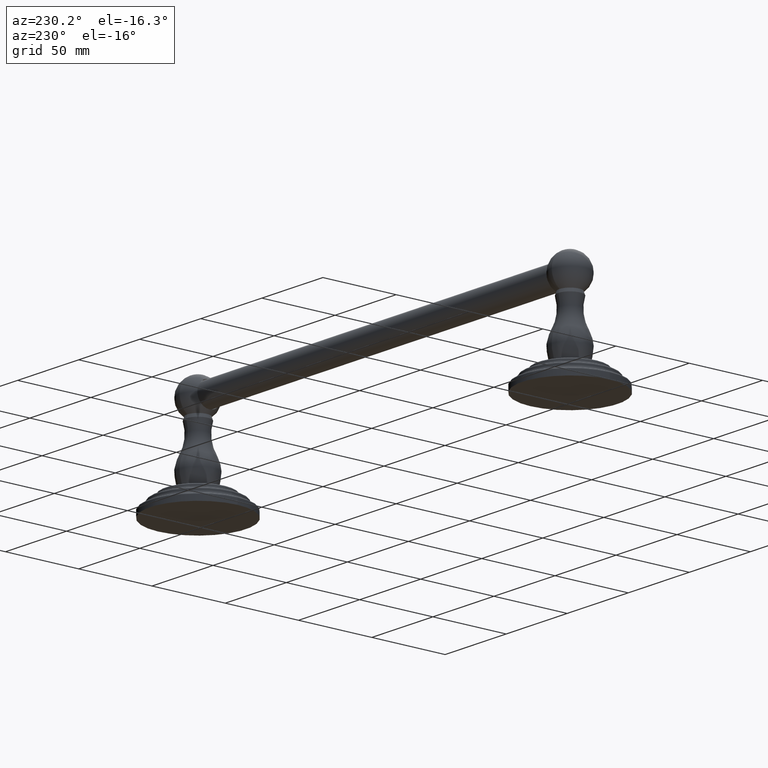
[diagram: clean part render]
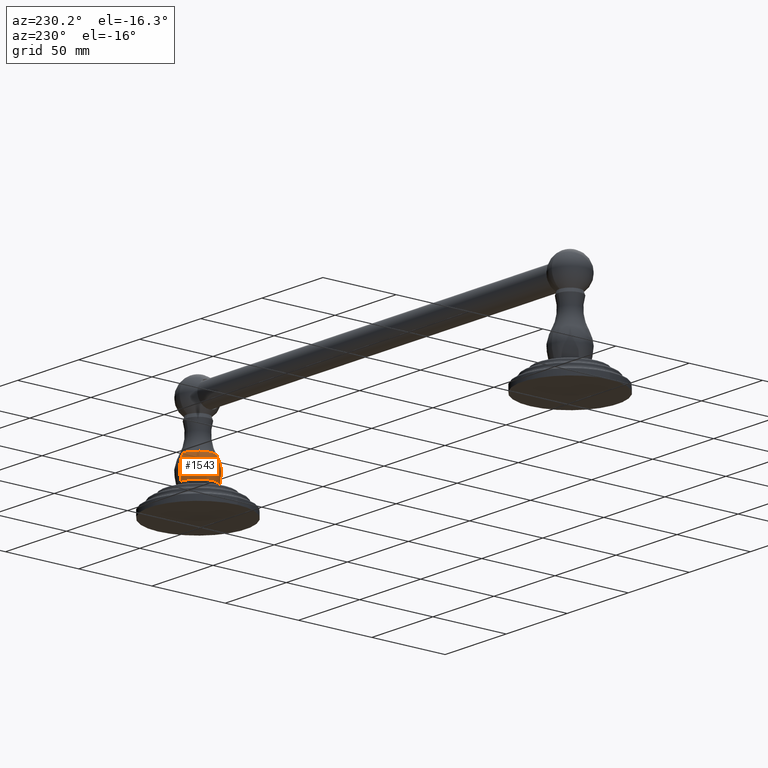
[diagram: same view with one face highlighted and labeled with its STEP entity id]
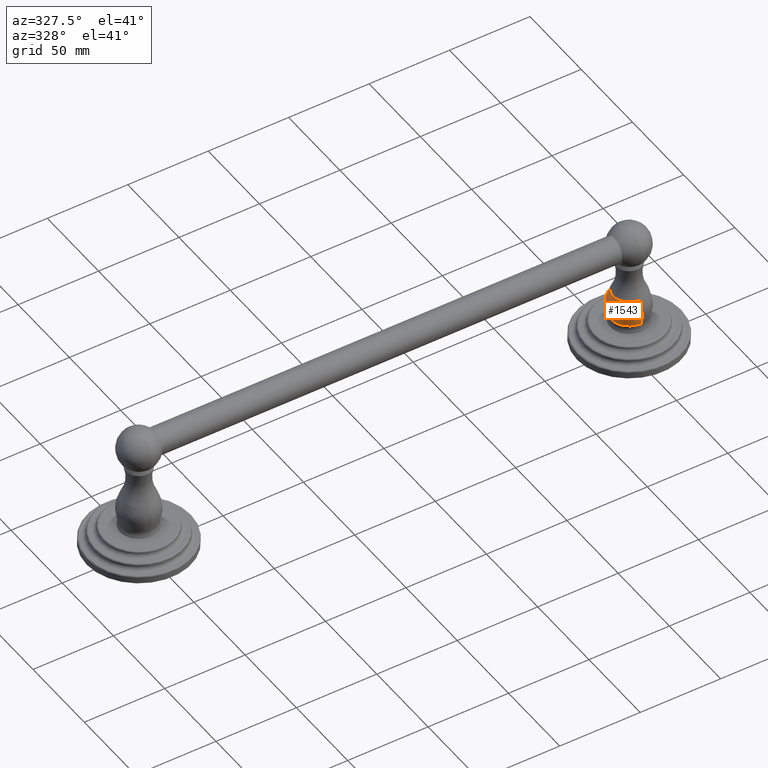
[diagram: same view with one face highlighted and labeled with its STEP entity id]
A machine part, auxiliary view. The second image highlights one B-rep face of the part: STEP entity #1543.
A second angle (auxiliary view) of the same face is appended — the face is thin or edge-on in the first view.
In plain terms, the highlighted face is a freeform B-spline surface patch.
Its self-contained STEP definition (entity closure, byte-faithful):
#424=CARTESIAN_POINT('',(6.E0,0.E0,1.325407199184E0));
#425=DIRECTION('',(0.E0,0.E0,-1.E0));
#426=DIRECTION('',(0.E0,-1.E0,0.E0));
#427=AXIS2_PLACEMENT_3D('',#424,#425,#426);
#439=CARTESIAN_POINT('',(6.E0,0.E0,7.122557875058E-1));
#440=DIRECTION('',(0.E0,0.E0,-1.E0));
#441=DIRECTION('',(0.E0,-1.E0,0.E0));
#442=AXIS2_PLACEMENT_3D('',#439,#440,#441);
#444=CARTESIAN_POINT('',(6.E0,-2.317404452469E-1,9.681354143990E-1));
#445=DIRECTION('',(1.E0,0.E0,0.E0));
#446=DIRECTION('',(0.E0,9.360087340445E-1,-3.519767745071E-1));
#447=AXIS2_PLACEMENT_3D('',#444,#445,#446);
#454=CARTESIAN_POINT('',(6.E0,2.317404452469E-1,9.681354143990E-1));
#455=DIRECTION('',(-1.E0,0.E0,0.E0));
#456=DIRECTION('',(0.E0,-9.360087340445E-1,-3.519767745071E-1));
#457=AXIS2_PLACEMENT_3D('',#454,#455,#456);
#826=CARTESIAN_POINT('',(6.E0,-4.487179911698E-1,7.122557875058E-1));
#827=CARTESIAN_POINT('',(6.E0,4.487179911698E-1,7.122557875058E-1));
#828=VERTEX_POINT('',#826);
#829=VERTEX_POINT('',#827);
#834=CARTESIAN_POINT('',(6.E0,-4.013906146024E-1,1.325407199184E0));
#835=CARTESIAN_POINT('',(6.E0,4.013906146024E-1,1.325407199184E0));
#836=VERTEX_POINT('',#834);
#837=VERTEX_POINT('',#835);
#1517=CARTESIAN_POINT('',(6.E0,4.487179911698E-1,7.122557875058E-1));
#1518=CARTESIAN_POINT('',(6.E0,5.256862077303E-1,9.169366873902E-1));
#1519=CARTESIAN_POINT('',(6.E0,5.088574435806E-1,1.134962304773E0));
#1520=CARTESIAN_POINT('',(6.E0,4.013906146024E-1,1.325407199184E0));
#1521=CARTESIAN_POINT('',(5.102564017660E0,4.487179911698E-1,
7.122557875058E-1));
#1522=CARTESIAN_POINT('',(4.948627584539E0,5.256862077303E-1,
9.169366873902E-1));
#1523=CARTESIAN_POINT('',(4.982285112839E0,5.088574435806E-1,1.134962304773E0));
#1524=CARTESIAN_POINT('',(5.197218770795E0,4.013906146024E-1,1.325407199184E0));
#1525=CARTESIAN_POINT('',(5.102564017660E0,-4.487179911698E-1,
7.122557875058E-1));
#1526=CARTESIAN_POINT('',(4.948627584539E0,-5.256862077303E-1,
9.169366873902E-1));
#1527=CARTESIAN_POINT('',(4.982285112839E0,-5.088574435806E-1,
1.134962304773E0));
#1528=CARTESIAN_POINT('',(5.197218770795E0,-4.013906146024E-1,
1.325407199184E0));
#1529=CARTESIAN_POINT('',(6.E0,-4.487179911698E-1,7.122557875058E-1));
#1530=CARTESIAN_POINT('',(6.E0,-5.256862077303E-1,9.169366873902E-1));
#1531=CARTESIAN_POINT('',(6.E0,-5.088574435806E-1,1.134962304773E0));
#1532=CARTESIAN_POINT('',(6.E0,-4.013906146024E-1,1.325407199184E0));
#1533=(BOUNDED_SURFACE()B_SPLINE_SURFACE(3,3,((#1517,#1518,#1519,#1520),(#1521,
#1522,#1523,#1524),(#1525,#1526,#1527,#1528),(#1529,#1530,#1531,#1532)),
.UNSPECIFIED.,.F.,.F.,.F.)B_SPLINE_SURFACE_WITH_KNOTS((4,4),(4,4),(0.E0,1.E0),(
0.E0,1.E0),.UNSPECIFIED.)GEOMETRIC_REPRESENTATION_ITEM()RATIONAL_B_SPLINE_SURFACE(((2.098475869855E0,1.967174710048E0,1.967174710048E0,2.098475869855E0),(
6.994919566182E-1,6.557249033495E-1,6.557249033495E-1,6.994919566182E-1),(
6.994919566182E-1,6.557249033495E-1,6.557249033495E-1,6.994919566182E-1),(
2.098475869855E0,1.967174710048E0,1.967174710048E0,2.098475869855E0)))REPRESENTATION_ITEM('')SURFACE());
#1534=ORIENTED_EDGE('',*,*,#1507,.F.);
#1536=ORIENTED_EDGE('',*,*,#1535,.F.);
#1538=ORIENTED_EDGE('',*,*,#1537,.T.);
#1540=ORIENTED_EDGE('',*,*,#1539,.T.);
#1541=EDGE_LOOP('',(#1534,#1536,#1538,#1540));
#1542=FACE_OUTER_BOUND('',#1541,.F.);
#1543=ADVANCED_FACE('',(#1542),#1533,.T.);
#428=CIRCLE('',#427,4.013906146024E-1);
#443=CIRCLE('',#442,4.487179911698E-1);
#448=CIRCLE('',#447,7.269787253762E-1);
#458=CIRCLE('',#457,7.269787253762E-1);
#1507=EDGE_CURVE('',#836,#837,#428,.T.);
#1535=EDGE_CURVE('',#828,#836,#458,.T.);
#1537=EDGE_CURVE('',#828,#829,#443,.T.);
#1539=EDGE_CURVE('',#829,#837,#448,.T.);